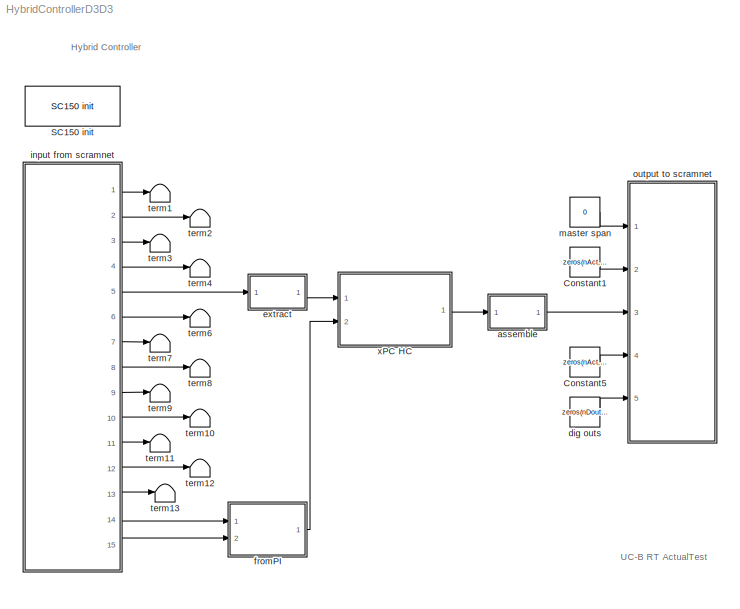
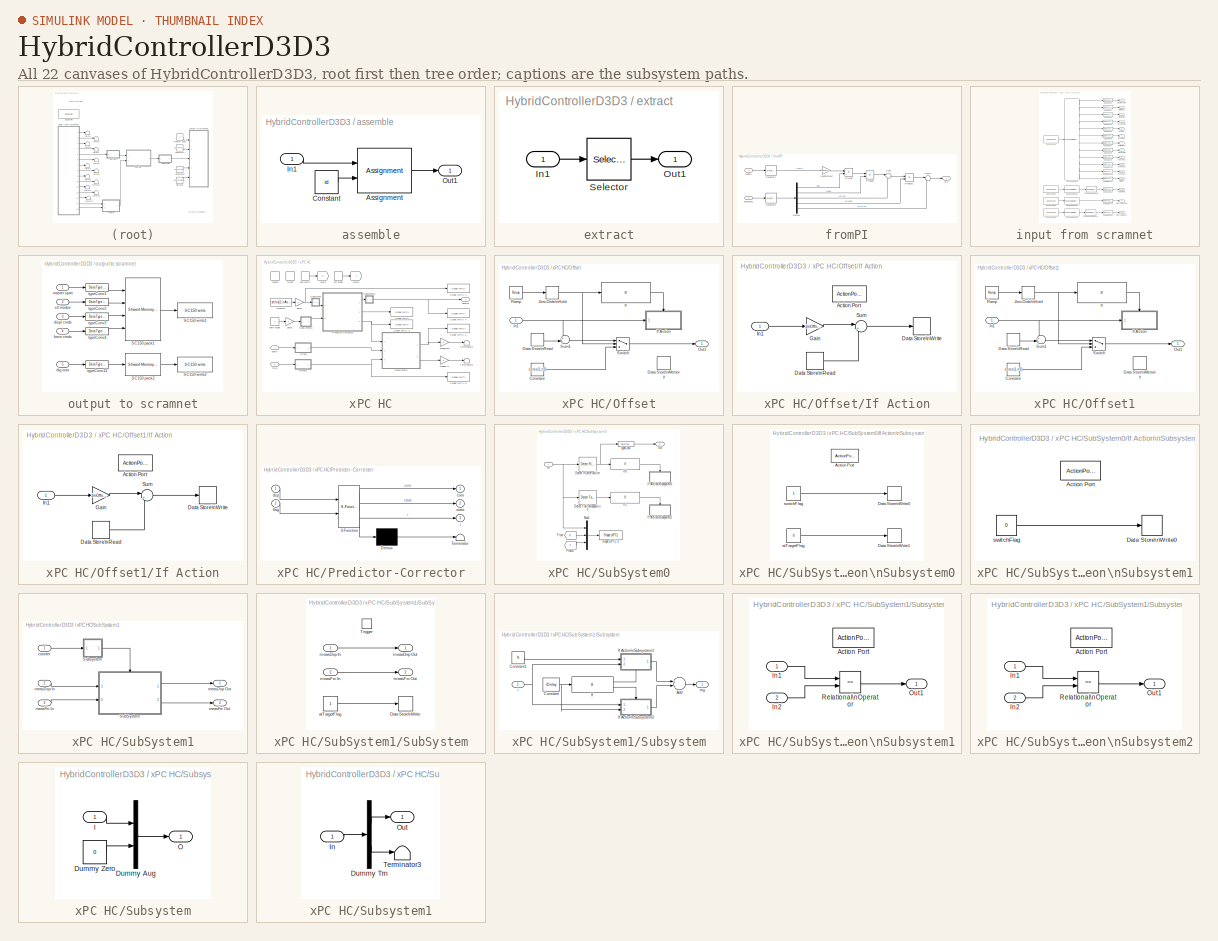
[diagram: thumbnail index - all 22 canvases of the model, root first then tree order]
MODEL HybridControllerD3D3
KIND model
CONFIG PreLoadFcn = initializeSimulation
BLOCK [Constant] Constant1
  OutDataType = sfix(16)
  OutScaling = 2^0
  SID = 1
  Value = zeros(nAct,1)
BLOCK [Constant] Constant5
  OutDataType = sfix(16)
  OutScaling = 2^0
  SID = 2
  Value = zeros(nAct,1)
BLOCK [Reference] SC150 init  REF=xpcsystranlib/Shared\nMemory/SC150 init 
  Ports = []
  SID = 3
  SourceBlock = xpcsystranlib/Shared\nMemory/SC150 init
  SourceType = SC150 Init
  node = node
  pci = -1
BLOCK [SubSystem] assemble
  FunctionWithSeparateData = off
  MaskCallbackString = |
  MaskDescription = To select to which actuator(s) the signals are going to
  MaskDisplay = disp('Assemble')
  MaskEnableString = on,on
  MaskHideContents = off
  MaskIconFrame = on
  MaskIconOpaque = on
  MaskIconRotate = none
  MaskIconUnits = autoscale
  MaskPortRotate = default
  MaskPromptString = Index Vector: id|Vector Size: size
  MaskStyleString = edit,edit
  MaskToolTipString = on,on
  MaskTunableValueString = on,on
  MaskType = to Actuators
  MaskValueString = [1 2 3]|nAct
  MaskVariables = id=@1;size=@2;
  MaskVisibilityString = on,on
  MinAlgLoopOccurrences = off
  Opaque = off
  Ports = [1, 1]
  PropExecContextOutsideSubsystem = off
  RTWSystemCode = Auto
  RequestExecContextInheritance = off
  SID = 4
BLOCK [Assignment] assemble/Assignment
  IndexOptions = Index vector (port)
  Indices = 1
  OutputInitialize = Specify size for each dimension in table
  OutputSizes = size
  Ports = [2, 1]
  SID = 6
BLOCK [Constant] assemble/Constant
  OutDataType = sfix(16)
  OutScaling = 2^0
  SID = 7
  Value = id
BLOCK [Inport] assemble/In1
  IconDisplay = Port number
  OutDataType = sfix(16)
  OutScaling = 2^0
  SID = 5
BLOCK [Outport] assemble/Out1
  IconDisplay = Port number
  OutDataType = sfix(16)
  OutScaling = 2^0
  SID = 8
BLOCK [Constant] dig outs
  OutDataType = sfix(16)
  OutDataTypeMode = uint32
  OutDataTypeStr = uint32
  OutScaling = 2^0
  SID = 9
  Value = zeros(nDout, 1)
BLOCK [SubSystem] extract
  FunctionWithSeparateData = off
  MaskCallbackString = |
  MaskDescription = To select from which actuator(s) the signals are coming from
  MaskDisplay = disp('Extract')
  MaskEnableString = on,on
  MaskHideContents = off
  MaskIconFrame = on
  MaskIconOpaque = on
  MaskIconRotate = none
  MaskIconUnits = autoscale
  MaskPortRotate = default
  MaskPromptString = Index Vector: id|Vector Size: size
  MaskStyleString = edit,edit
  MaskToolTipString = on,on
  MaskTunableValueString = on,on
  MaskType = from Actuators
  MaskValueString = [1 2 3]|nAct
  MaskVariables = id=@1;size=@2;
  MaskVisibilityString = on,on
  MinAlgLoopOccurrences = off
  Opaque = off
  Ports = [1, 1]
  PropExecContextOutsideSubsystem = off
  RTWSystemCode = Auto
  RequestExecContextInheritance = off
  SID = 10
BLOCK [Inport] extract/In1
  IconDisplay = Port number
  OutDataType = sfix(16)
  OutScaling = 2^0
  SID = 11
BLOCK [Outport] extract/Out1
  IconDisplay = Port number
  OutDataType = sfix(16)
  OutScaling = 2^0
  SID = 13
BLOCK [Selector] extract/Selector
  IndexOptions = Index vector (dialog)
  Indices = id
  InputPortWidth = size
  OutputSizes = 1
  Ports = [1, 1]
  SID = 12
BLOCK [SubSystem] fromPI
  FunctionWithSeparateData = off
  MaskHideContents = off
  MinAlgLoopOccurrences = off
  Opaque = off
  Ports = [2, 1]
  PropExecContextOutsideSubsystem = off
  RTWSystemCode = Auto
  RequestExecContextInheritance = off
  SID = 14
BLOCK [Gain] fromPI/Count2mvolt
  Gain = 10000/32768
  OutDataType = sfix(16)
  OutDataTypeMode = Inherit via internal rule
  OutDataTypeStr = Inherit: Inherit via internal rule
  OutScaling = 2^0
  ParamDataTypeStr = Inherit: Inherit via internal rule
  ParameterDataType = sfix(16)
  ParameterDataTypeMode = Inherit via internal rule
  ParameterScaling = 2^0
  SID = 17
  SaturateOnIntegerOverflow = off
BLOCK [Demux] fromPI/Demux
  DisplayOption = bar
  Outputs = repmat(length(chanID),1,5)
  Ports = [1, 5]
  SID = 18
BLOCK [Product] fromPI/Divide
  InputSameDT = off
  Inputs = */
  OutDataType = sfix(16)
  OutDataTypeMode = Inherit via internal rule
  OutDataTypeStr = Inherit: Inherit via internal rule
  OutScaling = 2^-10
  Ports = [2, 1]
  RndMeth = Floor
  SID = 19
  SaturateOnIntegerOverflow = off
BLOCK [Outport] fromPI/EU
  IconDisplay = Port number
  OutDataType = sfix(16)
  OutScaling = 2^0
  SID = 26
BLOCK [Product] fromPI/Product
  InputSameDT = off
  OutDataType = sfix(16)
  OutDataTypeMode = Inherit via internal rule
  OutDataTypeStr = Inherit: Inherit via internal rule
  OutScaling = 2^0
  Ports = [2, 1]
  SID = 20
  SaturateOnIntegerOverflow = off
BLOCK [Product] fromPI/Product1
  InputSameDT = off
  OutDataType = sfix(16)
  OutDataTypeMode = Inherit via internal rule
  OutDataTypeStr = Inherit: Inherit via internal rule
  OutScaling = 2^0
  Ports = [2, 1]
  SID = 21
  SaturateOnIntegerOverflow = off
BLOCK [Selector] fromPI/Selector1
  IndexOptions = Index vector (dialog)
  Indices = countsID
  InputPortWidth = nCard*CVTcompression*2
  OutputSizes = 1
  Ports = [1, 1]
  SID = 22
BLOCK [Selector] fromPI/Selector2
  IndexOptions = Index vector (dialog)
  Indices = calibrationID
  InputPortWidth = nCard*CVTcompression*11
  OutputSizes = 1
  Ports = [1, 1]
  SID = 23
BLOCK [Sum] fromPI/Sum
  IconShape = round
  InputSameDT = off
  Inputs = |++
  OutDataType = sfix(16)
  OutDataTypeMode = Inherit via internal rule
  OutDataTypeStr = Inherit: Inherit via internal rule
  OutScaling = 2^0
  Ports = [2, 1]
  SID = 24
  SaturateOnIntegerOverflow = off
BLOCK [Sum] fromPI/Sum1
  IconShape = round
  InputSameDT = off
  Inputs = |++
  OutDataType = sfix(16)
  OutDataTypeMode = Inherit via internal rule
  OutDataTypeStr = Inherit: Inherit via internal rule
  OutScaling = 2^0
  Ports = [2, 1]
  SID = 25
  SaturateOnIntegerOverflow = off
BLOCK [Inport] fromPI/constants
  IconDisplay = Port number
  OutDataType = sfix(16)
  OutScaling = 2^0
  Port = 2
  SID = 16
BLOCK [Inport] fromPI/counts
  IconDisplay = Port number
  OutDataType = sfix(16)
  OutScaling = 2^0
  SID = 15
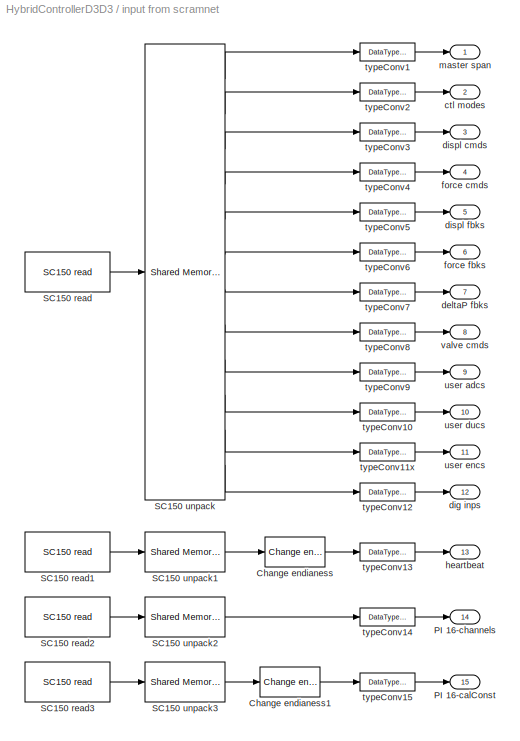
BLOCK [SubSystem] input from scramnet
  FunctionWithSeparateData = off
  MaskHideContents = off
  MinAlgLoopOccurrences = off
  Opaque = off
  Ports = [0, 15]
  PropExecContextOutsideSubsystem = off
  RTWSystemCode = Auto
  RequestExecContextInheritance = off
  SID = 27
BLOCK [Reference] input from scramnet/Change endianess  REF=xpclib/Shared\nMemory/Change endianess
  Ports = [1, 1]
  SID = 28
  SourceBlock = xpclib/Shared\nMemory/Change endianess
  SourceType = xpcreverseendian
  lengthIn = Double Word
  numInp = 1
BLOCK [Reference] input from scramnet/Change endianess1  REF=xpclib/Shared\nMemory/Change endianess
  Ports = [1, 1]
  SID = 29
  SourceBlock = xpclib/Shared\nMemory/Change endianess
  SourceType = xpcreverseendian
  lengthIn = Double Word
  numInp = 1
BLOCK [Outport] input from scramnet/PI 16-calConst
  IconDisplay = Port number
  OutDataType = sfix(16)
  OutScaling = 2^0
  Port = 15
  SID = 67
BLOCK [Outport] input from scramnet/PI 16-channels
  IconDisplay = Port number
  OutDataType = sfix(16)
  OutScaling = 2^0
  Port = 14
  SID = 66
BLOCK [Reference] input from scramnet/SC150 read  REF=xpcsystranlib/Shared\nMemory/SC150 read 
  Ports = [0, 1]
  SID = 30
  SourceBlock = xpcsystranlib/Shared\nMemory/SC150 read
  SourceType = SC150 Read
  errorport = off
  partition = node.Partitions(12:23)
  pci = -1
  ts = samplePeriod
BLOCK [Reference] input from scramnet/SC150 read1  REF=xpcsystranlib/Shared\nMemory/SC150 read 
  Ports = [0, 1]
  SID = 31
  SourceBlock = xpcsystranlib/Shared\nMemory/SC150 read
  SourceType = SC150 Read
  errorport = off
  partition = node.Partitions(25)
  pci = -1
  ts = samplePeriod
BLOCK [Reference] input from scramnet/SC150 read2  REF=xpcsystranlib/Shared\nMemory/SC150 read 
  Ports = [0, 1]
  SID = 32
  SourceBlock = xpcsystranlib/Shared\nMemory/SC150 read
  SourceType = SC150 Read
  errorport = off
  partition = node.Partitions(26)
  pci = -1
  ts = samplePeriod
BLOCK [Reference] input from scramnet/SC150 read3  REF=xpcsystranlib/Shared\nMemory/SC150 read 
  Ports = [0, 1]
  SID = 33
  SourceBlock = xpcsystranlib/Shared\nMemory/SC150 read
  SourceType = SC150 Read
  errorport = off
  partition = node.Partitions(29)
  pci = -1
  ts = samplePeriod
BLOCK [Reference] input from scramnet/SC150 unpack  REF=xpclib/Shared\nMemory/Shared Memory Unpack 
  Ports = [1, 12]
  SID = 34
  SourceBlock = xpclib/Shared\nMemory/Shared Memory Unpack
  SourceType = Shared Memory Partition Unpacking
  partition = node.Partitions(12:23)
BLOCK [Reference] input from scramnet/SC150 unpack1  REF=xpclib/Shared\nMemory/Shared Memory Unpack 
  Ports = [1, 1]
  SID = 35
  SourceBlock = xpclib/Shared\nMemory/Shared Memory Unpack
  SourceType = Shared Memory Partition Unpacking
  partition = node.Partitions(25)
BLOCK [Reference] input from scramnet/SC150 unpack2  REF=xpclib/Shared\nMemory/Shared Memory Unpack 
  Ports = [1, 1]
  SID = 36
  SourceBlock = xpclib/Shared\nMemory/Shared Memory Unpack
  SourceType = Shared Memory Partition Unpacking
  partition = node.Partitions(26)
BLOCK [Reference] input from scramnet/SC150 unpack3  REF=xpclib/Shared\nMemory/Shared Memory Unpack 
  Ports = [1, 1]
  SID = 37
  SourceBlock = xpclib/Shared\nMemory/Shared Memory Unpack
  SourceType = Shared Memory Partition Unpacking
  partition = node.Partitions(29)
BLOCK [Outport] input from scramnet/ctl modes
  IconDisplay = Port number
  OutDataType = sfix(16)
  OutScaling = 2^0
  Port = 2
  SID = 54
BLOCK [Outport] input from scramnet/deltaP fbks
  IconDisplay = Port number
  OutDataType = sfix(16)
  OutScaling = 2^0
  Port = 7
  SID = 59
BLOCK [Outport] input from scramnet/dig inps
  IconDisplay = Port number
  OutDataType = sfix(16)
  OutScaling = 2^0
  Port = 12
  SID = 64
BLOCK [Outport] input from scramnet/displ cmds
  IconDisplay = Port number
  OutDataType = sfix(16)
  OutScaling = 2^0
  Port = 3
  SID = 55
BLOCK [Outport] input from scramnet/displ fbks
  IconDisplay = Port number
  OutDataType = sfix(16)
  OutScaling = 2^0
  Port = 5
  SID = 57
BLOCK [Outport] input from scramnet/force cmds
  IconDisplay = Port number
  OutDataType = sfix(16)
  OutScaling = 2^0
  Port = 4
  SID = 56
BLOCK [Outport] input from scramnet/force fbks
  IconDisplay = Port number
  OutDataType = sfix(16)
  OutScaling = 2^0
  Port = 6
  SID = 58
BLOCK [Outport] input from scramnet/heartbeat
  IconDisplay = Port number
  OutDataType = sfix(16)
  OutScaling = 2^0
  Port = 13
  SID = 65
BLOCK [Outport] input from scramnet/master span
  IconDisplay = Port number
  OutDataType = sfix(16)
  OutScaling = 2^0
  SID = 53
BLOCK [DataTypeConversion] input from scramnet/typeConv1
  OutDataType = sfix(16)
  OutDataTypeMode = double
  OutDataTypeStr = double
  OutScaling = 2^0
  SID = 38
BLOCK [DataTypeConversion] input from scramnet/typeConv10
  OutDataType = sfix(16)
  OutDataTypeMode = double
  OutDataTypeStr = double
  OutScaling = 2^0
  SID = 39
BLOCK [DataTypeConversion] input from scramnet/typeConv11x
  OutDataType = sfix(16)
  OutDataTypeMode = double
  OutDataTypeStr = double
  OutScaling = 2^0
  SID = 40
BLOCK [DataTypeConversion] input from scramnet/typeConv12
  OutDataType = sfix(16)
  OutDataTypeMode = uint32
  OutDataTypeStr = uint32
  OutScaling = 2^0
  SID = 41
BLOCK [DataTypeConversion] input from scramnet/typeConv13
  OutDataType = sfix(16)
  OutDataTypeMode = uint32
  OutDataTypeStr = uint32
  OutScaling = 2^0
  SID = 42
BLOCK [DataTypeConversion] input from scramnet/typeConv14
  OutDataType = sfix(16)
  OutDataTypeMode = double
  OutDataTypeStr = double
  OutScaling = 2^0
  SID = 43
BLOCK [DataTypeConversion] input from scramnet/typeConv15
  OutDataType = sfix(16)
  OutDataTypeMode = double
  OutDataTypeStr = double
  OutScaling = 2^0
  SID = 44
BLOCK [DataTypeConversion] input from scramnet/typeConv2
  OutDataType = sfix(16)
  OutDataTypeMode = uint32
  OutDataTypeStr = uint32
  OutScaling = 2^0
  SID = 45
BLOCK [DataTypeConversion] input from scramnet/typeConv3
  OutDataType = sfix(16)
  OutDataTypeMode = double
  OutDataTypeStr = double
  OutScaling = 2^0
  SID = 46
BLOCK [DataTypeConversion] input from scramnet/typeConv4
  OutDataType = sfix(16)
  OutDataTypeMode = double
  OutDataTypeStr = double
  OutScaling = 2^0
  SID = 47
BLOCK [DataTypeConversion] input from scramnet/typeConv5
  OutDataType = sfix(16)
  OutDataTypeMode = double
  OutDataTypeStr = double
  OutScaling = 2^0
  SID = 48
BLOCK [DataTypeConversion] input from scramnet/typeConv6
  OutDataType = sfix(16)
  OutDataTypeMode = double
  OutDataTypeStr = double
  OutScaling = 2^0
  SID = 49
BLOCK [DataTypeConversion] input from scramnet/typeConv7
  OutDataType = sfix(16)
  OutDataTypeMode = double
  OutDataTypeStr = double
  OutScaling = 2^0
  SID = 50
BLOCK [DataTypeConversion] input from scramnet/typeConv8
  OutDataType = sfix(16)
  OutDataTypeMode = double
  OutDataTypeStr = double
  OutScaling = 2^0
  SID = 51
BLOCK [DataTypeConversion] input from scramnet/typeConv9
  OutDataType = sfix(16)
  OutDataTypeMode = double
  OutDataTypeStr = double
  OutScaling = 2^0
  SID = 52
BLOCK [Outport] input from scramnet/user adcs
  IconDisplay = Port number
  OutDataType = sfix(16)
  OutScaling = 2^0
  Port = 9
  SID = 61
BLOCK [Outport] input from scramnet/user ducs
  IconDisplay = Port number
  OutDataType = sfix(16)
  OutScaling = 2^0
  Port = 10
  SID = 62
BLOCK [Outport] input from scramnet/user encs
  IconDisplay = Port number
  OutDataType = sfix(16)
  OutScaling = 2^0
  Port = 11
  SID = 63
BLOCK [Outport] input from scramnet/valve cmds
  IconDisplay = Port number
  OutDataType = sfix(16)
  OutScaling = 2^0
  Port = 8
  SID = 60
BLOCK [Constant] master span
  OutDataType = sfix(16)
  OutScaling = 2^0
  SID = 68
  Value = 0
BLOCK [SubSystem] output to scramnet
  FunctionWithSeparateData = off
  MaskHideContents = off
  MinAlgLoopOccurrences = off
  Opaque = off
  Ports = [5]
  PropExecContextOutsideSubsystem = off
  RTWSystemCode = Auto
  RequestExecContextInheritance = off
  SID = 69
BLOCK [Reference] output to scramnet/SC150 pack1  REF=xpclib/Shared\nMemory/Shared Memory Pack 
  Ports = [4, 1]
  SID = 75
  SourceBlock = xpclib/Shared\nMemory/Shared Memory Pack
  SourceType = Shared-memory Pack
  partition = node.Partitions(1:4)
BLOCK [Reference] output to scramnet/SC150 pack2  REF=xpclib/Shared\nMemory/Shared Memory Pack 
  Ports = [1, 1]
  SID = 76
  SourceBlock = xpclib/Shared\nMemory/Shared Memory Pack
  SourceType = Shared-memory Pack
  partition = node.Partitions(11)
BLOCK [Reference] output to scramnet/SC150 write1  REF=xpcsystranlib/Shared\nMemory/SC150 write 
  Ports = [1]
  SID = 77
  SourceBlock = xpcsystranlib/Shared\nMemory/SC150 write
  SourceType = SC150 Write
  errorport = off
  partition = node.Partitions(1:4)
  pci = -1
  ts = samplePeriod
BLOCK [Reference] output to scramnet/SC150 write2  REF=xpcsystranlib/Shared\nMemory/SC150 write 
  Ports = [1]
  SID = 78
  SourceBlock = xpcsystranlib/Shared\nMemory/SC150 write
  SourceType = SC150 Write
  errorport = off
  partition = node.Partitions(11)
  pci = -1
  ts = samplePeriod
BLOCK [Inport] output to scramnet/ctl modes
  IconDisplay = Port number
  OutDataType = sfix(16)
  OutScaling = 2^0
  Port = 2
  SID = 71
BLOCK [Inport] output to scramnet/dig outs
  IconDisplay = Port number
  OutDataType = sfix(16)
  OutScaling = 2^0
  Port = 5
  SID = 74
BLOCK [Inport] output to scramnet/displ cmds
  IconDisplay = Port number
  OutDataType = sfix(16)
  OutScaling = 2^0
  Port = 3
  SID = 72
BLOCK [Inport] output to scramnet/force cmds
  IconDisplay = Port number
  OutDataType = sfix(16)
  OutScaling = 2^0
  Port = 4
  SID = 73
BLOCK [Inport] output to scramnet/master span
  IconDisplay = Port number
  OutDataType = sfix(16)
  OutScaling = 2^0
  SID = 70
BLOCK [DataTypeConversion] output to scramnet/typeConv1
  OutDataType = sfix(16)
  OutDataTypeMode = single
  OutDataTypeStr = single
  OutScaling = 2^0
  SID = 79
BLOCK [DataTypeConversion] output to scramnet/typeConv11
  OutDataType = sfix(16)
  OutDataTypeMode = uint32
  OutDataTypeStr = uint32
  OutScaling = 2^0
  SID = 80
BLOCK [DataTypeConversion] output to scramnet/typeConv2
  OutDataType = sfix(16)
  OutDataTypeMode = uint32
  OutDataTypeStr = uint32
  OutScaling = 2^0
  SID = 81
BLOCK [DataTypeConversion] output to scramnet/typeConv3
  OutDataType = sfix(16)
  OutDataTypeMode = single
  OutDataTypeStr = single
  OutScaling = 2^0
  SID = 82
BLOCK [DataTypeConversion] output to scramnet/typeConv4
  OutDataType = sfix(16)
  OutDataTypeMode = single
  OutDataTypeStr = single
  OutScaling = 2^0
  SID = 83
BLOCK [Terminator] term1
  SID = 84
BLOCK [Terminator] term10
  SID = 85
BLOCK [Terminator] term11
  SID = 86
BLOCK [Terminator] term12
  SID = 87
BLOCK [Terminator] term13
  SID = 88
BLOCK [Terminator] term2
  SID = 89
BLOCK [Terminator] term3
  SID = 90
BLOCK [Terminator] term4
  SID = 91
BLOCK [Terminator] term6
  SID = 92
BLOCK [Terminator] term7
  SID = 93
BLOCK [Terminator] term8
  SID = 94
BLOCK [Terminator] term9
  SID = 95
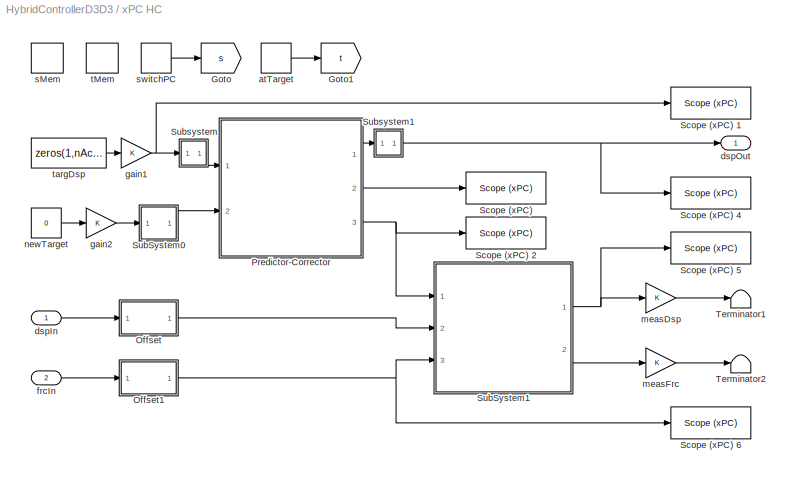
BLOCK [SubSystem] xPC HC
  FunctionWithSeparateData = off
  MaskCallbackString = |||||
  MaskDescription = Hybrid Controller using C0-continuous cubic Lagrange interpolation for prediction and correction
  MaskDisplay = disp('xPC Target\\nHybrid Controller\\n(D3/D3)')
  MaskEnableString = on,on,on,on,on,on
  MaskHideContents = off
  MaskIconFrame = on
  MaskIconOpaque = on
  MaskIconRotate = none
  MaskIconUnits = autoscale
  MaskPortRotate = default
  MaskPromptString = Number of Actuators: nAct|Integration time step: dtInt|Simulation time step: dtSim|Controller time step: dtCon|Maximum number of substeps: N|Number of delay steps: iDelay
  MaskStyleString = edit,edit,edit,edit,edit,edit
  MaskToolTipString = on,on,on,on,on,on
  MaskTunableValueString = off,on,on,on,on,on
  MaskType = Hybrid Controller: D3/D3
  MaskValueString = 3|HybridCtrlParameters.dtInt|HybridCtrlParameters.dtSim|HybridCtrlParameters.dtCon|HybridCtrlParameters.N|HybridCtrlParameters.iDelay
  MaskVariables = nAct=@1;dtInt=@2;dtSim=@3;dtCon=@4;N=@5;iDelay=@6;
  MaskVisibilityString = on,on,on,on,on,on
  MinAlgLoopOccurrences = off
  Opaque = off
  Ports = [2, 1]
  PropExecContextOutsideSubsystem = off
  RTWSystemCode = Auto
  RequestExecContextInheritance = off
  SID = 96
BLOCK [Goto] xPC HC/Goto
  GotoTag = s
  SID = 99
  TagVisibility = global
BLOCK [Goto] xPC HC/Goto1
  GotoTag = t
  SID = 100
  TagVisibility = global
BLOCK [SubSystem] xPC HC/Offset
  FunctionWithSeparateData = off
  MaskCallbackString = ||
  MaskDescription = Offset signal by average of signal over initial number of samples
  MaskDisplay = fprintf('Signal\\nOffset')
  MaskEnableString = on,on,on
  MaskHideContents = off
  MaskIconFrame = on
  MaskIconOpaque = on
  MaskIconRotate = none
  MaskIconUnits = autoscale
  MaskPortRotate = default
  MaskPromptString = Number of Signals: nS|Number of samples to initialize offset: nOffset|Sample time: dt
  MaskStyleString = edit,edit,edit
  MaskToolTipString = on,on,on
  MaskTunableValueString = on,on,on
  MaskType = Signal Offset
  MaskValueString = 3|1024|dtCon
  MaskVariables = nS=@1;nOffset=@2;dt=@3;
  MaskVisibilityString = on,on,on
  MinAlgLoopOccurrences = off
  Opaque = off
  Ports = [1, 1]
  PropExecContextOutsideSubsystem = off
  RTWSystemCode = Auto
  RequestExecContextInheritance = off
  SID = 101
BLOCK [Constant] xPC HC/Offset/Constant
  OutDataType = sfix(16)
  OutScaling = 2^0
  SID = 103
  Value = zeros(1,nS)
BLOCK [DataStoreMemory] xPC HC/Offset/Data Store\nMemory
  DataStoreName = x0
  DataType = double
  InitialValue = zeros(1,nS)
  OutDataType = sfix(16)
  OutDataTypeStr = double
  OutScaling = 2^0
  RTWStateStorageClass = Auto
  SID = 104
  SignalType = real
  VectorParams1D = on
BLOCK [DataStoreRead] xPC HC/Offset/Data Store\nRead
  DataStoreName = x0
  SID = 105
  SampleTime = dt
BLOCK [If] xPC HC/Offset/If
  IfExpression = u1 < nOffset
  Ports = [1, 1]
  SID = 106
  ShowElse = off
BLOCK [SubSystem] xPC HC/Offset/If Action
  FunctionWithSeparateData = off
  MaskHideContents = off
  MinAlgLoopOccurrences = off
  Opaque = off
  Ports = [1, 0, 0, 0, 0, 0, 0, 1]
  PropExecContextOutsideSubsystem = off
  RTWSystemCode = Auto
  RequestExecContextInheritance = off
  SID = 107
  TreatAsAtomicUnit = on
BLOCK [ActionPort] xPC HC/Offset/If Action/Action Port
  PropagateVarSize = During execution
  SID = 109
BLOCK [DataStoreRead] xPC HC/Offset/If Action/Data Store\nRead
  DataStoreName = x0
  SID = 110
  SampleTime = dt
BLOCK [DataStoreWrite] xPC HC/Offset/If Action/Data Store\nWrite
  DataStoreName = x0
  SID = 111
  SampleTime = -1
BLOCK [Gain] xPC HC/Offset/If Action/Gain
  Gain = 1/nOffset
  OutDataType = sfix(16)
  OutScaling = 2^0
  ParameterDataType = sfix(16)
  ParameterScaling = 2^0
  SID = 112
BLOCK [Inport] xPC HC/Offset/If Action/In1
  IconDisplay = Port number
  OutDataType = sfix(16)
  OutScaling = 2^0
  SID = 108
BLOCK [Sum] xPC HC/Offset/If Action/Sum
  IconShape = round
  Inputs = |++
  OutDataType = sfix(16)
  OutScaling = 2^0
  Ports = [2, 1]
  SID = 113
BLOCK [Inport] xPC HC/Offset/In1
  IconDisplay = Port number
  OutDataType = sfix(16)
  OutScaling = 2^0
  SID = 102
BLOCK [Outport] xPC HC/Offset/Out1
  IconDisplay = Port number
  OutDataType = sfix(16)
  OutScaling = 2^0
  SID = 118
BLOCK [Reference] xPC HC/Offset/Ramp  REF=simulink/Sources/Ramp
  FunctionWithSeparateData = off
  Ports = [0, 1]
  RTWMemSecDataConstants = Inherit from model
  RTWMemSecDataInternal = Inherit from model
  RTWMemSecDataParameters = Inherit from model
  RTWMemSecFuncExecute = Inherit from model
  RTWMemSecFuncInitTerm = Inherit from model
  SID = 114
  ShowPortLabels = FromPortIcon
  SourceBlock = simulink/Sources/Ramp
  SourceType = Ramp
  SystemSampleTime = -1
  VectorParams1D = on
  X0 = 0
  slope = 1/dt
  start = 0
BLOCK [Sum] xPC HC/Offset/Sum1
  IconShape = round
  Inputs = +-|
  OutDataType = sfix(16)
  OutScaling = 2^0
  Ports = [2, 1]
  SID = 115
BLOCK [Switch] xPC HC/Offset/Switch
  SID = 116
  Threshold = nOffset
BLOCK [ZeroOrderHold] xPC HC/Offset/Zero-Order\nHold
  SID = 117
  SampleTime = dt
BLOCK [SubSystem] xPC HC/Offset1
  FunctionWithSeparateData = off
  MaskCallbackString = ||
  MaskDescription = Offset signal by average of signal over initial number of samples
  MaskDisplay = fprintf('Signal\\nOffset')
  MaskEnableString = on,on,on
  MaskHideContents = off
  MaskIconFrame = on
  MaskIconOpaque = on
  MaskIconRotate = none
  MaskIconUnits = autoscale
  MaskPortRotate = default
  MaskPromptString = Number of Signals: nS|Number of samples to initialize offset: nOffset|Sample time: dt
  MaskStyleString = edit,edit,edit
  MaskToolTipString = on,on,on
  MaskTunableValueString = on,on,on
  MaskType = Signal Offset
  MaskValueString = 6|1024|dtCon
  MaskVariables = nS=@1;nOffset=@2;dt=@3;
  MaskVisibilityString = on,on,on
  MinAlgLoopOccurrences = off
  Opaque = off
  Ports = [1, 1]
  PropExecContextOutsideSubsystem = off
  RTWSystemCode = Auto
  RequestExecContextInheritance = off
  SID = 119
BLOCK [Constant] xPC HC/Offset1/Constant
  OutDataType = sfix(16)
  OutScaling = 2^0
  SID = 121
  Value = zeros(1,nS)
BLOCK [DataStoreMemory] xPC HC/Offset1/Data Store\nMemory
  DataStoreName = x0
  DataType = double
  InitialValue = zeros(1,nS)
  OutDataType = sfix(16)
  OutDataTypeStr = double
  OutScaling = 2^0
  RTWStateStorageClass = Auto
  SID = 122
  SignalType = real
  VectorParams1D = on
BLOCK [DataStoreRead] xPC HC/Offset1/Data Store\nRead
  DataStoreName = x0
  SID = 123
  SampleTime = dt
BLOCK [If] xPC HC/Offset1/If
  IfExpression = u1 < nOffset
  Ports = [1, 1]
  SID = 124
  ShowElse = off
BLOCK [SubSystem] xPC HC/Offset1/If Action
  FunctionWithSeparateData = off
  MaskHideContents = off
  MinAlgLoopOccurrences = off
  Opaque = off
  Ports = [1, 0, 0, 0, 0, 0, 0, 1]
  PropExecContextOutsideSubsystem = off
  RTWSystemCode = Auto
  RequestExecContextInheritance = off
  SID = 125
  TreatAsAtomicUnit = on
BLOCK [ActionPort] xPC HC/Offset1/If Action/Action Port
  PropagateVarSize = During execution
  SID = 127
BLOCK [DataStoreRead] xPC HC/Offset1/If Action/Data Store\nRead
  DataStoreName = x0
  SID = 128
  SampleTime = dt
BLOCK [DataStoreWrite] xPC HC/Offset1/If Action/Data Store\nWrite
  DataStoreName = x0
  SID = 129
  SampleTime = -1
BLOCK [Gain] xPC HC/Offset1/If Action/Gain
  Gain = 1/nOffset
  OutDataType = sfix(16)
  OutScaling = 2^0
  ParameterDataType = sfix(16)
  ParameterScaling = 2^0
  SID = 130
BLOCK [Inport] xPC HC/Offset1/If Action/In1
  IconDisplay = Port number
  OutDataType = sfix(16)
  OutScaling = 2^0
  SID = 126
BLOCK [Sum] xPC HC/Offset1/If Action/Sum
  IconShape = round
  Inputs = |++
  OutDataType = sfix(16)
  OutScaling = 2^0
  Ports = [2, 1]
  SID = 131
BLOCK [Inport] xPC HC/Offset1/In1
  IconDisplay = Port number
  OutDataType = sfix(16)
  OutScaling = 2^0
  SID = 120
BLOCK [Outport] xPC HC/Offset1/Out1
  IconDisplay = Port number
  OutDataType = sfix(16)
  OutScaling = 2^0
  SID = 136
BLOCK [Reference] xPC HC/Offset1/Ramp  REF=simulink/Sources/Ramp
  FunctionWithSeparateData = off
  Ports = [0, 1]
  RTWMemSecDataConstants = Inherit from model
  RTWMemSecDataInternal = Inherit from model
  RTWMemSecDataParameters = Inherit from model
  RTWMemSecFuncExecute = Inherit from model
  RTWMemSecFuncInitTerm = Inherit from model
  SID = 132
  ShowPortLabels = FromPortIcon
  SourceBlock = simulink/Sources/Ramp
  SourceType = Ramp
  SystemSampleTime = -1
  VectorParams1D = on
  X0 = 0
  slope = 1/dt
  start = 0
BLOCK [Sum] xPC HC/Offset1/Sum1
  IconShape = round
  Inputs = +-|
  OutDataType = sfix(16)
  OutScaling = 2^0
  Ports = [2, 1]
  SID = 133
BLOCK [Switch] xPC HC/Offset1/Switch
  SID = 134
  Threshold = nOffset
BLOCK [ZeroOrderHold] xPC HC/Offset1/Zero-Order\nHold
  SID = 135
  SampleTime = dt
BLOCK [SubSystem] xPC HC/Predictor-Corrector
  FunctionWithSeparateData = off
  MaskDisplay = plot(sf('Private','sfblk','xIcon'),sf('Private','sfblk','yIcon'));text(0.5,0,sf('Private', 'sfblk', 'tIcon'),'HorizontalAl','Center','VerticalAl','Bottom');
  MaskHideContents = off
  MaskIconFrame = off
  MaskIconOpaque = off
  MaskIconRotate = none
  MaskIconUnits = autoscale
  MaskPortRotate = default
  MaskSelfModifiable = on
  MaskType = Stateflow
  MinAlgLoopOccurrences = off
  Opaque = off
  PermitHierarchicalResolution = ExplicitOnly
  Ports = [2, 3]
  PropExecContextOutsideSubsystem = off
  RTWSystemCode = Auto
  RequestExecContextInheritance = off
  SID = 137
  TreatAsAtomicUnit = on
BLOCK [Demux] xPC HC/Predictor-Corrector/ Demux 
  Outputs = 1
  Ports = [1, 1]
  SID = 10
BLOCK [S-Function] xPC HC/Predictor-Corrector/ SFunction 
  EnableBusSupport = off
  FunctionName = sf_sfun
  Parameters = N,nAct
  PortCounts = [2 4]
  Ports = [2, 4]
  SID = 9
  Tag = Stateflow S-Function HybridControllerD3D3 1
BLOCK [Terminator] xPC HC/Predictor-Corrector/ Terminator 
  SID = 12
BLOCK [Outport] xPC HC/Predictor-Corrector/com
  IconDisplay = Port number
  OutDataType = sfix(16)
  OutScaling = 2^0
  SID = 6
BLOCK [Inport] xPC HC/Predictor-Corrector/dsp
  IconDisplay = Port number
  OutDataType = sfix(16)
  OutScaling = 2^0
  SID = 1
BLOCK [Inport] xPC HC/Predictor-Corrector/flag
  IconDisplay = Port number
  OutDataType = sfix(16)
  OutScaling = 2^0
  Port = 2
  SID = 2
BLOCK [Outport] xPC HC/Predictor-Corrector/i
  IconDisplay = Port number
  OutDataType = sfix(16)
  OutScaling = 2^0
  Port = 3
  SID = 8
BLOCK [Outport] xPC HC/Predictor-Corrector/state
  IconDisplay = Port number
  OutDataType = sfix(16)
  OutScaling = 2^0
  Port = 2
  SID = 7
BLOCK [Reference] xPC HC/Scope (xPC)   REF=xpclib/Misc./Scope (xPC) 
  FunctionWithSeparateData = off
  Ports = [1]
  RTWMemSecDataConstants = Inherit from model
  RTWMemSecDataInternal = Inherit from model
  RTWMemSecDataParameters = Inherit from model
  RTWMemSecFuncExecute = Inherit from model
  RTWMemSecFuncInitTerm = Inherit from model
  SID = 138
  ShowPortLabels = FromPortIcon
  SourceBlock = xpclib/Misc./Scope (xPC)
  SourceType = xpcscopeblock
  SystemSampleTime = -1
  autorestart = on
  autostart = on
  dynamicfilemode = off
  filename = state.dat
  formatstr = '%15.6f'
  grid = on
  interleave = 1
  maxwritefilesize = 512*1024^2
  mode = Lazy
  noprepostsamples = 0
  nosamples = 4096
  scopeno = 4
  scopetype = File
  triggerlevel = 0.0
  triggermode = FreeRun
  triggersample = 0
  triggerscope = 1
  triggersignal = 1
  triggerslope = Either
  viewmode = Graphical redraw
  writesize = 512
  ylimits = [0,3]
BLOCK [Reference] xPC HC/Scope (xPC) 1  REF=xpclib/Misc./Scope (xPC) 
  FunctionWithSeparateData = off
  Ports = [1]
  RTWMemSecDataConstants = Inherit from model
  RTWMemSecDataInternal = Inherit from model
  RTWMemSecDataParameters = Inherit from model
  RTWMemSecFuncExecute = Inherit from model
  RTWMemSecFuncInitTerm = Inherit from model
  SID = 139
  ShowPortLabels = FromPortIcon
  SourceBlock = xpclib/Misc./Scope (xPC)
  SourceType = xpcscopeblock
  SystemSampleTime = -1
  autorestart = on
  autostart = on
  dynamicfilemode = off
  filename = targDsp.dat
  formatstr = '%15.6f'
  grid = on
  interleave = 1
  maxwritefilesize = 512*1024^2
  mode = Lazy
  noprepostsamples = 0
  nosamples = 4096
  scopeno = 1
  scopetype = File
  triggerlevel = 0.0
  triggermode = FreeRun
  triggersample = 0
  triggerscope = 1
  triggersignal = 1
  triggerslope = Either
  viewmode = Numerical
  writesize = 512
  ylimits = [-4,4]
BLOCK [Reference] xPC HC/Scope (xPC) 2  REF=xpclib/Misc./Scope (xPC) 
  FunctionWithSeparateData = off
  Ports = [1]
  RTWMemSecDataConstants = Inherit from model
  RTWMemSecDataInternal = Inherit from model
  RTWMemSecDataParameters = Inherit from model
  RTWMemSecFuncExecute = Inherit from model
  RTWMemSecFuncInitTerm = Inherit from model
  SID = 140
  ShowPortLabels = FromPortIcon
  SourceBlock = xpclib/Misc./Scope (xPC)
  SourceType = xpcscopeblock
  SystemSampleTime = -1
  autorestart = on
  autostart = on
  dynamicfilemode = off
  filename = count.dat
  formatstr = '%15.6f'
  grid = on
  interleave = 1
  maxwritefilesize = 512*1024^2
  mode = Lazy
  noprepostsamples = 0
  nosamples = 4096
  scopeno = 5
  scopetype = File
  triggerlevel = 0.0
  triggermode = FreeRun
  triggersample = 0
  triggerscope = 1
  triggersignal = 1
  triggerslope = Either
  viewmode = Numerical
  writesize = 512
  ylimits = [0,3]
BLOCK [Reference] xPC HC/Scope (xPC) 4  REF=xpclib/Misc./Scope (xPC) 
  FunctionWithSeparateData = off
  Ports = [1]
  RTWMemSecDataConstants = Inherit from model
  RTWMemSecDataInternal = Inherit from model
  RTWMemSecDataParameters = Inherit from model
  RTWMemSecFuncExecute = Inherit from model
  RTWMemSecFuncInitTerm = Inherit from model
  SID = 141
  ShowPortLabels = FromPortIcon
  SourceBlock = xpclib/Misc./Scope (xPC)
  SourceType = xpcscopeblock
  SystemSampleTime = -1
  autorestart = on
  autostart = on
  dynamicfilemode = off
  filename = commDsp.dat
  formatstr = '%15.6f'
  grid = on
  interleave = 1
  maxwritefilesize = 512*1024^2
  mode = Lazy
  noprepostsamples = 0
  nosamples = 4096
  scopeno = 2
  scopetype = File
  triggerlevel = 0.0
  triggermode = FreeRun
  triggersample = 0
  triggerscope = 1
  triggersignal = 1
  triggerslope = Either
  viewmode = Numerical
  writesize = 512
  ylimits = [-4,4]
BLOCK [Reference] xPC HC/Scope (xPC) 5  REF=xpclib/Misc./Scope (xPC) 
  FunctionWithSeparateData = off
  Ports = [1]
  RTWMemSecDataConstants = Inherit from model
  RTWMemSecDataInternal = Inherit from model
  RTWMemSecDataParameters = Inherit from model
  RTWMemSecFuncExecute = Inherit from model
  RTWMemSecFuncInitTerm = Inherit from model
  SID = 142
  ShowPortLabels = FromPortIcon
  SourceBlock = xpclib/Misc./Scope (xPC)
  SourceType = xpcscopeblock
  SystemSampleTime = -1
  autorestart = on
  autostart = on
  dynamicfilemode = off
  filename = measDsp.dat
  formatstr = '%15.6f'
  grid = on
  interleave = 1
  maxwritefilesize = 512*1024^2
  mode = Lazy
  noprepostsamples = 0
  nosamples = 4096
  scopeno = 3
  scopetype = File
  triggerlevel = 0.0
  triggermode = FreeRun
  triggersample = 0
  triggerscope = 1
  triggersignal = 1
  triggerslope = Either
  viewmode = Numerical
  writesize = 512
  ylimits = [-4,4]
BLOCK [Reference] xPC HC/Scope (xPC) 6  REF=xpclib/Misc./Scope (xPC) 
  FunctionWithSeparateData = off
  Ports = [1]
  RTWMemSecDataConstants = Inherit from model
  RTWMemSecDataInternal = Inherit from model
  RTWMemSecDataParameters = Inherit from model
  RTWMemSecFuncExecute = Inherit from model
  RTWMemSecFuncInitTerm = Inherit from model
  SID = 143
  ShowPortLabels = FromPortIcon
  SourceBlock = xpclib/Misc./Scope (xPC)
  SourceType = xpcscopeblock
  SystemSampleTime = -1
  autorestart = on
  autostart = on
  dynamicfilemode = off
  filename = measFrc.dat
  formatstr = '%15.6f'
  grid = on
  interleave = 1
  maxwritefilesize = 512*1024^2
  mode = Lazy
  noprepostsamples = 0
  nosamples = 4096
  scopeno = 6
  scopetype = File
  triggerlevel = 0.0
  triggermode = FreeRun
  triggersample = 0
  triggerscope = 1
  triggersignal = 1
  triggerslope = Either
  viewmode = Numerical
  writesize = 512
  ylimits = [0,3]
BLOCK [SubSystem] xPC HC/SubSystem0
  FunctionWithSeparateData = off
  MaskHideContents = off
  MinAlgLoopOccurrences = off
  Opaque = off
  Ports = [1, 1]
  PropExecContextOutsideSubsystem = off
  RTWSystemCode = Auto
  RequestExecContextInheritance = off
  SID = 144
BLOCK [Reference] xPC HC/SubSystem0/Detect Fall\nNonpositive  REF=simulink/Logic and Bit\nOperations/Detect Fall\nNonpositive
  FunctionWithSeparateData = off
  Ports = [1, 1]
  RTWMemSecDataConstants = Inherit from model
  RTWMemSecDataInternal = Inherit from model
  RTWMemSecDataParameters = Inherit from model
  RTWMemSecFuncExecute = Inherit from model
  RTWMemSecFuncInitTerm = Inherit from model
  SID = 146
  ShowPortLabels = FromPortIcon
  SourceBlock = simulink/Logic and Bit\nOperations/Detect Fall\nNonpositive
  SourceType = Detect Fall Nonpositive
  SystemSampleTime = -1
  vinit = 0
BLOCK [Reference] xPC HC/SubSystem0/Detect Rise\nPositive  REF=simulink/Logic and Bit\nOperations/Detect Rise\nPositive
  FunctionWithSeparateData = off
  Ports = [1, 1]
  RTWMemSecDataConstants = Inherit from model
  RTWMemSecDataInternal = Inherit from model
  RTWMemSecDataParameters = Inherit from model
  RTWMemSecFuncExecute = Inherit from model
  RTWMemSecFuncInitTerm = Inherit from model
  SID = 147
  ShowPortLabels = FromPortIcon
  SourceBlock = simulink/Logic and Bit\nOperations/Detect Rise\nPositive
  SourceType = Detect Rise Positive
  SystemSampleTime = -1
  vinit = 0
BLOCK [From] xPC HC/SubSystem0/From
  GotoTag = s
  IconDisplay = Signal name
  SID = 148
  TagVisibility = global
BLOCK [From] xPC HC/SubSystem0/From1
  GotoTag = t
  IconDisplay = Signal name
  SID = 149
  TagVisibility = global
BLOCK [SubSystem] xPC HC/SubSystem0/If Action\nSubsystem0
  FunctionWithSeparateData = off
  MaskHideContents = off
  MinAlgLoopOccurrences = off
  Opaque = off
  Ports = [0, 0, 0, 0, 0, 0, 0, 1]
  PropExecContextOutsideSubsystem = off
  RTWSystemCode = Auto
  RequestExecContextInheritance = off
  SID = 150
  TreatAsAtomicUnit = on
BLOCK [ActionPort] xPC HC/SubSystem0/If Action\nSubsystem0/Action Port
  PropagateVarSize = During execution
  SID = 151
BLOCK [DataStoreWrite] xPC HC/SubSystem0/If Action\nSubsystem0/Data Store\nWrite0
  DataStoreName = sFlag
  SID = 152
  SampleTime = -1
BLOCK [DataStoreWrite] xPC HC/SubSystem0/If Action\nSubsystem0/Data Store\nWrite1
  DataStoreName = tFlag
  SID = 153
  SampleTime = -1
BLOCK [Constant] xPC HC/SubSystem0/If Action\nSubsystem0/atTargetFlag
  OutDataType = sfix(16)
  OutScaling = 2^0
  SID = 154
  SampleTime = dtCon
  Value = 0
BLOCK [Constant] xPC HC/SubSystem0/If Action\nSubsystem0/switchFlag
  OutDataType = sfix(16)
  OutScaling = 2^0
  SID = 155
  SampleTime = dtCon
BLOCK [SubSystem] xPC HC/SubSystem0/If Action\nSubsystem1
  FunctionWithSeparateData = off
  MaskHideContents = off
  MinAlgLoopOccurrences = off
  Opaque = off
  Ports = [0, 0, 0, 0, 0, 0, 0, 1]
  PropExecContextOutsideSubsystem = off
  RTWSystemCode = Auto
  RequestExecContextInheritance = off
  SID = 156
  TreatAsAtomicUnit = on
BLOCK [ActionPort] xPC HC/SubSystem0/If Action\nSubsystem1/Action Port
  PropagateVarSize = During execution
  SID = 157
BLOCK [DataStoreWrite] xPC HC/SubSystem0/If Action\nSubsystem1/Data Store\nWrite0
  DataStoreName = sFlag
  SID = 158
  SampleTime = -1
BLOCK [Constant] xPC HC/SubSystem0/If Action\nSubsystem1/switchFlag
  OutDataType = sfix(16)
  OutScaling = 2^0
  SID = 159
  SampleTime = dtCon
  Value = 0
BLOCK [If] xPC HC/SubSystem0/If0
  IfExpression = u1 == 1
  Ports = [1, 1]
  SID = 160
  ShowElse = off
BLOCK [If] xPC HC/SubSystem0/If1
  IfExpression = u1 == 1
  Ports = [1, 1]
  SID = 161
  ShowElse = off
BLOCK [Inport] xPC HC/SubSystem0/In
  IconDisplay = Port number
  OutDataType = sfix(16)
  OutScaling = 2^0
  SID = 145
BLOCK [Mux] xPC HC/SubSystem0/Mux1
  DisplayOption = bar
  Inputs = 3
  Ports = [3, 1]
  SID = 162
BLOCK [Outport] xPC HC/SubSystem0/Out
  IconDisplay = Port number
  OutDataType = sfix(16)
  OutScaling = 2^0
  SID = 165
BLOCK [Reference] xPC HC/SubSystem0/Scope (xPC) 3  REF=xpclib/Misc./Scope (xPC) 
  FunctionWithSeparateData = off
  Ports = [1]
  RTWMemSecDataConstants = Inherit from model
  RTWMemSecDataInternal = Inherit from model
  RTWMemSecDataParameters = Inherit from model
  RTWMemSecFuncExecute = Inherit from model
  RTWMemSecFuncInitTerm = Inherit from model
  SID = 163
  ShowPortLabels = FromPortIcon
  SourceBlock = xpclib/Misc./Scope (xPC)
  SourceType = xpcscopeblock
  SystemSampleTime = -1
  autorestart = on
  autostart = on
  dynamicfilemode = off
  filename = flag.dat
  formatstr = '%15.6f'
  grid = on
  interleave = 1
  maxwritefilesize = 512*1024^2
  mode = Lazy
  noprepostsamples = 0
  nosamples = 4096
  scopeno = 7
  scopetype = File
  triggerlevel = 0.0
  triggermode = FreeRun
  triggersample = 0
  triggerscope = 1
  triggersignal = 1
  triggerslope = Either
  viewmode = Numerical
  writesize = 512
  ylimits = [0,3]
BLOCK [DataTypeConversion] xPC HC/SubSystem0/typeConv
  OutDataType = sfix(16)
  OutDataTypeMode = double
  OutDataTypeStr = double
  OutScaling = 2^0
  SID = 164
BLOCK [SubSystem] xPC HC/SubSystem1
  FunctionWithSeparateData = off
  MaskHideContents = off
  MinAlgLoopOccurrences = off
  Opaque = off
  Ports = [3, 2]
  PropExecContextOutsideSubsystem = off
  RTWSystemCode = Auto
  RequestExecContextInheritance = off
  SID = 166
BLOCK [SubSystem] xPC HC/SubSystem1/SubSystem
  FunctionWithSeparateData = off
  MaskHideContents = off
  MinAlgLoopOccurrences = off
  Opaque = off
  Ports = [2, 2, 0, 1]
  PropExecContextOutsideSubsystem = off
  RTWSystemCode = Auto
  RequestExecContextInheritance = off
  SID = 171
  TreatAsAtomicUnit = on
BLOCK [DataStoreWrite] xPC HC/SubSystem1/SubSystem/Data Store\nWrite
  DataStoreName = tFlag
  SID = 175
  SampleTime = -1
BLOCK [TriggerPort] xPC HC/SubSystem1/SubSystem/Trigger
  Ports = []
  SID = 174
  StatesWhenEnabling = held
BLOCK [Constant] xPC HC/SubSystem1/SubSystem/atTargetFlag
  OutDataType = sfix(16)
  OutScaling = 2^0
  SID = 176
  SampleTime = -1
BLOCK [Inport] xPC HC/SubSystem1/SubSystem/measDsp In
  IconDisplay = Port number
  OutDataType = sfix(16)
  OutScaling = 2^0
  SID = 172
BLOCK [Outport] xPC HC/SubSystem1/SubSystem/measDsp Out
  IconDisplay = Port number
  InitialOutput = [0]
  OutDataType = sfix(16)
  OutScaling = 2^0
  SID = 177
BLOCK [Inport] xPC HC/SubSystem1/SubSystem/measFrc In
  IconDisplay = Port number
  OutDataType = sfix(16)
  OutScaling = 2^0
  Port = 2
  SID = 173
BLOCK [Outport] xPC HC/SubSystem1/SubSystem/measFrc Out
  IconDisplay = Port number
  InitialOutput = [0]
  OutDataType = sfix(16)
  OutScaling = 2^0
  Port = 2
  SID = 178
BLOCK [SubSystem] xPC HC/SubSystem1/Subsystem
  FunctionWithSeparateData = off
  MaskHideContents = off
  MinAlgLoopOccurrences = off
  Opaque = off
  Ports = [1, 1]
  PropExecContextOutsideSubsystem = off
  RTWSystemCode = Auto
  RequestExecContextInheritance = off
  SID = 194
BLOCK [Sum] xPC HC/SubSystem1/Subsystem/Add
  InputSameDT = off
  OutDataType = fixdt(1, 16)
  OutDataTypeMode = Inherit via internal rule
  OutDataTypeStr = Inherit: Inherit via internal rule
  OutScaling = 2^-10
  Ports = [2, 1]
  SID = 196
  SaturateOnIntegerOverflow = off
BLOCK [Constant] xPC HC/SubSystem1/Subsystem/Constant
  OutDataType = fixdt(1, 16)
  OutScaling = 2^0
  SID = 197
  Value = iDelay
BLOCK [Constant] xPC HC/SubSystem1/Subsystem/Constant1
  OutDataType = fixdt(1, 16)
  OutScaling = 2^0
  SID = 198
  Value = N
BLOCK [If] xPC HC/SubSystem1/Subsystem/If
  IfExpression = u1 == 0
  Ports = [1, 2]
  SID = 199
BLOCK [SubSystem] xPC HC/SubSystem1/Subsystem/If Action\nSubsystem1
  FunctionWithSeparateData = off
  MaskHideContents = off
  MinAlgLoopOccurrences = off
  Opaque = off
  Ports = [2, 1, 0, 0, 0, 0, 0, 1]
  PropExecContextOutsideSubsystem = off
  RTWSystemCode = Auto
  RequestExecContextInheritance = off
  SID = 200
  TreatAsAtomicUnit = on
BLOCK [ActionPort] xPC HC/SubSystem1/Subsystem/If Action\nSubsystem1/Action Port
  SID = 203
BLOCK [Inport] xPC HC/SubSystem1/Subsystem/If Action\nSubsystem1/In1
  IconDisplay = Port number
  OutDataType = fixdt(1, 16)
  OutScaling = 2^0
  SID = 201
BLOCK [Inport] xPC HC/SubSystem1/Subsystem/If Action\nSubsystem1/In2
  IconDisplay = Port number
  OutDataType = fixdt(1, 16)
  OutScaling = 2^0
  Port = 2
  SID = 202
BLOCK [Outport] xPC HC/SubSystem1/Subsystem/If Action\nSubsystem1/Out1
  IconDisplay = Port number
  OutDataType = fixdt(1, 16)
  OutScaling = 2^0
  SID = 205
BLOCK [RelationalOperator] xPC HC/SubSystem1/Subsystem/If Action\nSubsystem1/Relational\nOperator
  InputSameDT = off
  LogicDataType = fixdt(0, 8)
  LogicOutDataTypeMode = boolean
  Operator = ==
  OutDataTypeStr = boolean
  Ports = [2, 1]
  SID = 204
BLOCK [SubSystem] xPC HC/SubSystem1/Subsystem/If Action\nSubsystem2
  FunctionWithSeparateData = off
  MaskHideContents = off
  MinAlgLoopOccurrences = off
  Opaque = off
  Ports = [2, 1, 0, 0, 0, 0, 0, 1]
  PropExecContextOutsideSubsystem = off
  RTWSystemCode = Auto
  RequestExecContextInheritance = off
  SID = 206
  TreatAsAtomicUnit = on
BLOCK [ActionPort] xPC HC/SubSystem1/Subsystem/If Action\nSubsystem2/Action Port
  SID = 209
BLOCK [Inport] xPC HC/SubSystem1/Subsystem/If Action\nSubsystem2/In1
  IconDisplay = Port number
  OutDataType = fixdt(1, 16)
  OutScaling = 2^0
  SID = 207
BLOCK [Inport] xPC HC/SubSystem1/Subsystem/If Action\nSubsystem2/In2
  IconDisplay = Port number
  OutDataType = fixdt(1, 16)
  OutScaling = 2^0
  Port = 2
  SID = 208
BLOCK [Outport] xPC HC/SubSystem1/Subsystem/If Action\nSubsystem2/Out1
  IconDisplay = Port number
  OutDataType = fixdt(1, 16)
  OutScaling = 2^0
  SID = 211
BLOCK [RelationalOperator] xPC HC/SubSystem1/Subsystem/If Action\nSubsystem2/Relational\nOperator
  InputSameDT = off
  LogicDataType = fixdt(0, 8)
  LogicOutDataTypeMode = boolean
  Operator = ==
  OutDataTypeStr = boolean
  Ports = [2, 1]
  SID = 210
BLOCK [Inport] xPC HC/SubSystem1/Subsystem/i
  IconDisplay = Port number
  SID = 195
BLOCK [Outport] xPC HC/SubSystem1/Subsystem/trig
  IconDisplay = Port number
  SID = 212
BLOCK [Inport] xPC HC/SubSystem1/counter
  IconDisplay = Port number
  OutDataType = sfix(16)
  OutScaling = 2^0
  SID = 167
BLOCK [Inport] xPC HC/SubSystem1/measDsp In
  IconDisplay = Port number
  OutDataType = sfix(16)
  OutScaling = 2^0
  Port = 2
  SID = 168
BLOCK [Outport] xPC HC/SubSystem1/measDsp Out
  IconDisplay = Port number
  OutDataType = sfix(16)
  OutScaling = 2^0
  SID = 179
BLOCK [Inport] xPC HC/SubSystem1/measFrc In
  IconDisplay = Port number
  OutDataType = sfix(16)
  OutScaling = 2^0
  Port = 3
  SID = 169
BLOCK [Outport] xPC HC/SubSystem1/measFrc Out
  IconDisplay = Port number
  OutDataType = sfix(16)
  OutScaling = 2^0
  Port = 2
  SID = 180
BLOCK [SubSystem] xPC HC/Subsystem
  FunctionWithSeparateData = off
  MaskDisplay = disp('I/O')
  MaskHideContents = off
  MaskIconFrame = on
  MaskIconOpaque = on
  MaskIconRotate = none
  MaskIconUnits = autoscale
  MaskPortRotate = default
  MinAlgLoopOccurrences = off
  Opaque = off
  Ports = [1, 1]
  PropExecContextOutsideSubsystem = off
  RTWSystemCode = Auto
  RequestExecContextInheritance = off
  SID = 238
BLOCK [Mux] xPC HC/Subsystem/Dummy Aug
  DisplayOption = bar
  Inputs = [nAct 1]
  Ports = [2, 1]
  SID = 240
BLOCK [Constant] xPC HC/Subsystem/Dummy Zero
  OutDataType = sfix(16)
  OutDataTypeMode = double
  OutDataTypeStr = double
  OutScaling = 2^0
  SID = 241
  SampleTime = dtCon
  Value = 0
BLOCK [Inport] xPC HC/Subsystem/I
  IconDisplay = Port number
  PortDimensions = nAct
  SID = 239
BLOCK [Outport] xPC HC/Subsystem/O
  IconDisplay = Port number
  PortDimensions = nAct+1
  SID = 242
BLOCK [SubSystem] xPC HC/Subsystem1
  FunctionWithSeparateData = off
  MaskDisplay = disp('I/O')
  MaskHideContents = off
  MaskIconFrame = on
  MaskIconOpaque = on
  MaskIconRotate = none
  MaskIconUnits = autoscale
  MaskPortRotate = default
  MinAlgLoopOccurrences = off
  Opaque = off
  Ports = [1, 1]
  PropExecContextOutsideSubsystem = off
  RTWSystemCode = Auto
  RequestExecContextInheritance = off
  SID = 243
BLOCK [Demux] xPC HC/Subsystem1/Dummy Trn
  DisplayOption = bar
  Outputs = [nAct 1]
  Ports = [1, 2]
  SID = 245
BLOCK [Inport] xPC HC/Subsystem1/In
  IconDisplay = Port number
  PortDimensions = nAct+1
  SID = 244
BLOCK [Outport] xPC HC/Subsystem1/Out
  IconDisplay = Port number
  PortDimensions = nAct
  SID = 247
BLOCK [Terminator] xPC HC/Subsystem1/Terminator3
  SID = 246
BLOCK [Terminator] xPC HC/Terminator1
  SID = 181
BLOCK [Terminator] xPC HC/Terminator2
  SID = 182
BLOCK [DataStoreRead] xPC HC/atTarget
  DataStoreName = tFlag
  SID = 183
  SampleTime = dtCon
BLOCK [Inport] xPC HC/dspIn
  IconDisplay = Port number
  OutDataType = sfix(16)
  OutScaling = 2^0
  SID = 97
BLOCK [Outport] xPC HC/dspOut
  IconDisplay = Port number
  OutDataType = sfix(16)
  OutScaling = 2^0
  SID = 193
BLOCK [Inport] xPC HC/frcIn
  IconDisplay = Port number
  OutDataType = sfix(16)
  OutScaling = 2^0
  Port = 2
  SID = 98
BLOCK [Gain] xPC HC/gain1
  OutDataType = sfix(16)
  OutDataTypeMode = Inherit via internal rule
  OutDataTypeStr = Inherit: Inherit via internal rule
  OutScaling = 2^0
  ParamDataTypeStr = Inherit: Inherit via internal rule
  ParameterDataType = sfix(16)
  ParameterDataTypeMode = Inherit via internal rule
  ParameterScaling = 2^0
  SID = 184
  SaturateOnIntegerOverflow = off
BLOCK [Gain] xPC HC/gain2
  OutDataType = sfix(16)
  OutDataTypeMode = Inherit via internal rule
  OutDataTypeStr = Inherit: Inherit via internal rule
  OutScaling = 2^0
  ParamDataTypeStr = Inherit: Inherit via internal rule
  ParameterDataType = sfix(16)
  ParameterDataTypeMode = Inherit via internal rule
  ParameterScaling = 2^0
  SID = 185
  SaturateOnIntegerOverflow = off
BLOCK [Gain] xPC HC/measDsp
  OutDataType = sfix(16)
  OutDataTypeMode = Inherit via internal rule
  OutDataTypeStr = Inherit: Inherit via internal rule
  OutScaling = 2^0
  ParamDataTypeStr = Inherit: Inherit via internal rule
  ParameterDataType = sfix(16)
  ParameterDataTypeMode = Inherit via internal rule
  ParameterScaling = 2^0
  SID = 186
  SaturateOnIntegerOverflow = off
BLOCK [Gain] xPC HC/measFrc
  OutDataType = sfix(16)
  OutDataTypeMode = Inherit via internal rule
  OutDataTypeStr = Inherit: Inherit via internal rule
  OutScaling = 2^0
  ParamDataTypeStr = Inherit: Inherit via internal rule
  ParameterDataType = sfix(16)
  ParameterDataTypeMode = Inherit via internal rule
  ParameterScaling = 2^0
  SID = 187
  SaturateOnIntegerOverflow = off
BLOCK [Constant] xPC HC/newTarget
  OutDataType = sfix(16)
  OutScaling = 2^0
  SID = 188
  SampleTime = dtCon
  Value = 0
BLOCK [DataStoreMemory] xPC HC/sMem
  DataStoreName = sFlag
  DataType = double
  OutDataType = sfix(16)
  OutDataTypeStr = double
  OutScaling = 2^0
  RTWStateStorageClass = Auto
  SID = 189
  SignalType = real
  VectorParams1D = on
BLOCK [DataStoreRead] xPC HC/switchPC
  DataStoreName = sFlag
  SID = 190
  SampleTime = dtCon
BLOCK [DataStoreMemory] xPC HC/tMem
  DataStoreName = tFlag
  DataType = double
  OutDataType = sfix(16)
  OutDataTypeStr = double
  OutScaling = 2^0
  RTWStateStorageClass = Auto
  SID = 191
  SignalType = real
  VectorParams1D = on
BLOCK [Constant] xPC HC/targDsp
  OutDataType = sfix(16)
  OutScaling = 2^0
  SID = 192
  SampleTime = dtCon
  Value = zeros(1,nAct)
ANNOTATION (root): Hybrid Controller
ANNOTATION (root): UC-B RT ActualTest
LINE Constant1:1 -> output to scramnet:2
LINE Constant5:1 -> output to scramnet:4
LINE assemble/Assignment:1 -> assemble/Out1:1
LINE assemble/Constant:1 -> assemble/Assignment:2
LINE assemble/In1:1 -> assemble/Assignment:1
LINE assemble:1 -> output to scramnet:3
LINE dig outs:1 -> output to scramnet:5
LINE extract/In1:1 -> extract/Selector:1
LINE extract/Selector:1 -> extract/Out1:1
LINE extract:1 -> xPC HC:1
LINE fromPI/Count2mvolt:1 -> fromPI/Divide:1
LINE fromPI/Demux:1 -> fromPI/Divide:2
LINE fromPI/Demux:2 -> fromPI/Product:2
LINE fromPI/Demux:3 -> fromPI/Sum:2
LINE fromPI/Demux:4 -> fromPI/Product1:2
LINE fromPI/Demux:5 -> fromPI/Sum1:2
LINE fromPI/Divide:1 -> fromPI/Product:1
LINE fromPI/Product1:1 -> fromPI/Sum1:1
LINE fromPI/Product:1 -> fromPI/Sum:1
LINE fromPI/Selector1:1 -> fromPI/Count2mvolt:1
LINE fromPI/Selector2:1 -> fromPI/Demux:1
LINE fromPI/Sum1:1 -> fromPI/EU:1
LINE fromPI/Sum:1 -> fromPI/Product1:1
LINE fromPI/constants:1 -> fromPI/Selector2:1
LINE fromPI/counts:1 -> fromPI/Selector1:1
LINE fromPI:1 -> xPC HC:2
LINE input from scramnet/Change endianess1:1 -> input from scramnet/typeConv15:1
LINE input from scramnet/Change endianess:1 -> input from scramnet/typeConv13:1
LINE input from scramnet/SC150 read1:1 -> input from scramnet/SC150 unpack1:1
LINE input from scramnet/SC150 read2:1 -> input from scramnet/SC150 unpack2:1
LINE input from scramnet/SC150 read3:1 -> input from scramnet/SC150 unpack3:1
LINE input from scramnet/SC150 read:1 -> input from scramnet/SC150 unpack:1
LINE input from scramnet/SC150 unpack1:1 -> input from scramnet/Change endianess:1
LINE input from scramnet/SC150 unpack2:1 -> input from scramnet/typeConv14:1
LINE input from scramnet/SC150 unpack3:1 -> input from scramnet/Change endianess1:1
LINE input from scramnet/SC150 unpack:1 -> input from scramnet/typeConv1:1
LINE input from scramnet/SC150 unpack:10 -> input from scramnet/typeConv10:1
LINE input from scramnet/SC150 unpack:11 -> input from scramnet/typeConv11x:1
LINE input from scramnet/SC150 unpack:12 -> input from scramnet/typeConv12:1
LINE input from scramnet/SC150 unpack:2 -> input from scramnet/typeConv2:1
LINE input from scramnet/SC150 unpack:3 -> input from scramnet/typeConv3:1
LINE input from scramnet/SC150 unpack:4 -> input from scramnet/typeConv4:1
LINE input from scramnet/SC150 unpack:5 -> input from scramnet/typeConv5:1
LINE input from scramnet/SC150 unpack:6 -> input from scramnet/typeConv6:1
LINE input from scramnet/SC150 unpack:7 -> input from scramnet/typeConv7:1
LINE input from scramnet/SC150 unpack:8 -> input from scramnet/typeConv8:1
LINE input from scramnet/SC150 unpack:9 -> input from scramnet/typeConv9:1
LINE input from scramnet/typeConv10:1 -> input from scramnet/user ducs:1
LINE input from scramnet/typeConv11x:1 -> input from scramnet/user encs:1
LINE input from scramnet/typeConv12:1 -> input from scramnet/dig inps:1
LINE input from scramnet/typeConv13:1 -> input from scramnet/heartbeat:1
LINE input from scramnet/typeConv14:1 -> input from scramnet/PI 16-channels:1
LINE input from scramnet/typeConv15:1 -> input from scramnet/PI 16-calConst:1
LINE input from scramnet/typeConv1:1 -> input from scramnet/master span:1
LINE input from scramnet/typeConv2:1 -> input from scramnet/ctl modes:1
LINE input from scramnet/typeConv3:1 -> input from scramnet/displ cmds:1
LINE input from scramnet/typeConv4:1 -> input from scramnet/force cmds:1
LINE input from scramnet/typeConv5:1 -> input from scramnet/displ fbks:1
LINE input from scramnet/typeConv6:1 -> input from scramnet/force fbks:1
LINE input from scramnet/typeConv7:1 -> input from scramnet/deltaP fbks:1
LINE input from scramnet/typeConv8:1 -> input from scramnet/valve cmds:1
LINE input from scramnet/typeConv9:1 -> input from scramnet/user adcs:1
LINE input from scramnet:1 -> term1:1
LINE input from scramnet:10 -> term10:1
LINE input from scramnet:11 -> term11:1
LINE input from scramnet:12 -> term12:1
LINE input from scramnet:13 -> term13:1
LINE input from scramnet:14 -> fromPI:1
LINE input from scramnet:15 -> fromPI:2
LINE input from scramnet:2 -> term2:1
LINE input from scramnet:3 -> term3:1
LINE input from scramnet:4 -> term4:1
LINE input from scramnet:5 -> extract:1
LINE input from scramnet:6 -> term6:1
LINE input from scramnet:7 -> term7:1
LINE input from scramnet:8 -> term8:1
LINE input from scramnet:9 -> term9:1
LINE master span:1 -> output to scramnet:1
LINE output to scramnet/SC150 pack1:1 -> output to scramnet/SC150 write1:1
LINE output to scramnet/SC150 pack2:1 -> output to scramnet/SC150 write2:1
LINE output to scramnet/ctl modes:1 -> output to scramnet/typeConv2:1
LINE output to scramnet/dig outs:1 -> output to scramnet/typeConv11:1
LINE output to scramnet/displ cmds:1 -> output to scramnet/typeConv3:1
LINE output to scramnet/force cmds:1 -> output to scramnet/typeConv4:1
LINE output to scramnet/master span:1 -> output to scramnet/typeConv1:1
LINE output to scramnet/typeConv11:1 -> output to scramnet/SC150 pack2:1
LINE output to scramnet/typeConv1:1 -> output to scramnet/SC150 pack1:1
LINE output to scramnet/typeConv2:1 -> output to scramnet/SC150 pack1:2
LINE output to scramnet/typeConv3:1 -> output to scramnet/SC150 pack1:3
LINE output to scramnet/typeConv4:1 -> output to scramnet/SC150 pack1:4
LINE xPC HC/Offset/Constant:1 -> xPC HC/Offset/Switch:3
LINE xPC HC/Offset/Data Store\nRead:1 -> xPC HC/Offset/Sum1:2
LINE xPC HC/Offset/If Action/Data Store\nRead:1 -> xPC HC/Offset/If Action/Sum:2
LINE xPC HC/Offset/If Action/Gain:1 -> xPC HC/Offset/If Action/Sum:1
LINE xPC HC/Offset/If Action/In1:1 -> xPC HC/Offset/If Action/Gain:1
LINE xPC HC/Offset/If Action/Sum:1 -> xPC HC/Offset/If Action/Data Store\nWrite:1
LINE xPC HC/Offset/If:1 -> xPC HC/Offset/If Action:ifaction
NET xPC HC/Offset/In1:1 -> xPC HC/Offset/If Action:1, xPC HC/Offset/Sum1:1
LINE xPC HC/Offset/Ramp:1 -> xPC HC/Offset/Zero-Order\nHold:1
LINE xPC HC/Offset/Sum1:1 -> xPC HC/Offset/Switch:1
LINE xPC HC/Offset/Switch:1 -> xPC HC/Offset/Out1:1
NET xPC HC/Offset/Zero-Order\nHold:1 -> xPC HC/Offset/If:1, xPC HC/Offset/Switch:2
LINE xPC HC/Offset1/Constant:1 -> xPC HC/Offset1/Switch:3
LINE xPC HC/Offset1/Data Store\nRead:1 -> xPC HC/Offset1/Sum1:2
LINE xPC HC/Offset1/If Action/Data Store\nRead:1 -> xPC HC/Offset1/If Action/Sum:2
LINE xPC HC/Offset1/If Action/Gain:1 -> xPC HC/Offset1/If Action/Sum:1
LINE xPC HC/Offset1/If Action/In1:1 -> xPC HC/Offset1/If Action/Gain:1
LINE xPC HC/Offset1/If Action/Sum:1 -> xPC HC/Offset1/If Action/Data Store\nWrite:1
LINE xPC HC/Offset1/If:1 -> xPC HC/Offset1/If Action:ifaction
NET xPC HC/Offset1/In1:1 -> xPC HC/Offset1/If Action:1, xPC HC/Offset1/Sum1:1
LINE xPC HC/Offset1/Ramp:1 -> xPC HC/Offset1/Zero-Order\nHold:1
LINE xPC HC/Offset1/Sum1:1 -> xPC HC/Offset1/Switch:1
LINE xPC HC/Offset1/Switch:1 -> xPC HC/Offset1/Out1:1
NET xPC HC/Offset1/Zero-Order\nHold:1 -> xPC HC/Offset1/If:1, xPC HC/Offset1/Switch:2
NET xPC HC/Offset1:1 -> xPC HC/Scope (xPC) 6:1, xPC HC/SubSystem1:3
LINE xPC HC/Offset:1 -> xPC HC/SubSystem1:2
LINE xPC HC/Predictor-Corrector/ Demux :1 -> xPC HC/Predictor-Corrector/ Terminator :1
LINE xPC HC/Predictor-Corrector/ SFunction :1 -> xPC HC/Predictor-Corrector/ Demux :1
LINE xPC HC/Predictor-Corrector/ SFunction :2 -> xPC HC/Predictor-Corrector/com:1
LINE xPC HC/Predictor-Corrector/ SFunction :3 -> xPC HC/Predictor-Corrector/state:1
LINE xPC HC/Predictor-Corrector/ SFunction :4 -> xPC HC/Predictor-Corrector/i:1
LINE xPC HC/Predictor-Corrector/dsp:1 -> xPC HC/Predictor-Corrector/ SFunction :1
LINE xPC HC/Predictor-Corrector/flag:1 -> xPC HC/Predictor-Corrector/ SFunction :2
LINE xPC HC/Predictor-Corrector:1 -> xPC HC/Subsystem1:1
LINE xPC HC/Predictor-Corrector:2 -> xPC HC/Scope (xPC) :1
NET xPC HC/Predictor-Corrector:3 -> xPC HC/Scope (xPC) 2:1, xPC HC/SubSystem1:1
LINE xPC HC/SubSystem0/Detect Fall\nNonpositive:1 -> xPC HC/SubSystem0/If1:1
NET xPC HC/SubSystem0/Detect Rise\nPositive:1 -> xPC HC/SubSystem0/If0:1, xPC HC/SubSystem0/typeConv:1
LINE xPC HC/SubSystem0/From1:1 -> xPC HC/SubSystem0/Mux1:3
LINE xPC HC/SubSystem0/From:1 -> xPC HC/SubSystem0/Mux1:2
LINE xPC HC/SubSystem0/If Action\nSubsystem0/atTargetFlag:1 -> xPC HC/SubSystem0/If Action\nSubsystem0/Data Store\nWrite1:1
LINE xPC HC/SubSystem0/If Action\nSubsystem0/switchFlag:1 -> xPC HC/SubSystem0/If Action\nSubsystem0/Data Store\nWrite0:1
LINE xPC HC/SubSystem0/If Action\nSubsystem1/switchFlag:1 -> xPC HC/SubSystem0/If Action\nSubsystem1/Data Store\nWrite0:1
LINE xPC HC/SubSystem0/If0:1 -> xPC HC/SubSystem0/If Action\nSubsystem0:ifaction
LINE xPC HC/SubSystem0/If1:1 -> xPC HC/SubSystem0/If Action\nSubsystem1:ifaction
NET xPC HC/SubSystem0/In:1 -> xPC HC/SubSystem0/Detect Fall\nNonpositive:1, xPC HC/SubSystem0/Detect Rise\nPositive:1, xPC HC/SubSystem0/Mux1:1
LINE xPC HC/SubSystem0/Mux1:1 -> xPC HC/SubSystem0/Scope (xPC) 3:1
LINE xPC HC/SubSystem0/typeConv:1 -> xPC HC/SubSystem0/Out:1
LINE xPC HC/SubSystem0:1 -> xPC HC/Predictor-Corrector:2
LINE xPC HC/SubSystem1/SubSystem/atTargetFlag:1 -> xPC HC/SubSystem1/SubSystem/Data Store\nWrite:1
LINE xPC HC/SubSystem1/SubSystem/measDsp In:1 -> xPC HC/SubSystem1/SubSystem/measDsp Out:1
LINE xPC HC/SubSystem1/SubSystem/measFrc In:1 -> xPC HC/SubSystem1/SubSystem/measFrc Out:1
LINE xPC HC/SubSystem1/SubSystem:1 -> xPC HC/SubSystem1/measDsp Out:1
LINE xPC HC/SubSystem1/SubSystem:2 -> xPC HC/SubSystem1/measFrc Out:1
LINE xPC HC/SubSystem1/Subsystem/Add:1 -> xPC HC/SubSystem1/Subsystem/trig:1
LINE xPC HC/SubSystem1/Subsystem/Constant1:1 -> xPC HC/SubSystem1/Subsystem/If Action\nSubsystem1:1
NET xPC HC/SubSystem1/Subsystem/Constant:1 -> xPC HC/SubSystem1/Subsystem/If Action\nSubsystem2:2, xPC HC/SubSystem1/Subsystem/If:1
LINE xPC HC/SubSystem1/Subsystem/If Action\nSubsystem1/In1:1 -> xPC HC/SubSystem1/Subsystem/If Action\nSubsystem1/Relational\nOperator:1
LINE xPC HC/SubSystem1/Subsystem/If Action\nSubsystem1/In2:1 -> xPC HC/SubSystem1/Subsystem/If Action\nSubsystem1/Relational\nOperator:2
LINE xPC HC/SubSystem1/Subsystem/If Action\nSubsystem1/Relational\nOperator:1 -> xPC HC/SubSystem1/Subsystem/If Action\nSubsystem1/Out1:1
LINE xPC HC/SubSystem1/Subsystem/If Action\nSubsystem1:1 -> xPC HC/SubSystem1/Subsystem/Add:1
LINE xPC HC/SubSystem1/Subsystem/If Action\nSubsystem2/In1:1 -> xPC HC/SubSystem1/Subsystem/If Action\nSubsystem2/Relational\nOperator:1
LINE xPC HC/SubSystem1/Subsystem/If Action\nSubsystem2/In2:1 -> xPC HC/SubSystem1/Subsystem/If Action\nSubsystem2/Relational\nOperator:2
LINE xPC HC/SubSystem1/Subsystem/If Action\nSubsystem2/Relational\nOperator:1 -> xPC HC/SubSystem1/Subsystem/If Action\nSubsystem2/Out1:1
LINE xPC HC/SubSystem1/Subsystem/If Action\nSubsystem2:1 -> xPC HC/SubSystem1/Subsystem/Add:2
LINE xPC HC/SubSystem1/Subsystem/If:1 -> xPC HC/SubSystem1/Subsystem/If Action\nSubsystem1:ifaction
LINE xPC HC/SubSystem1/Subsystem/If:2 -> xPC HC/SubSystem1/Subsystem/If Action\nSubsystem2:ifaction
NET xPC HC/SubSystem1/Subsystem/i:1 -> xPC HC/SubSystem1/Subsystem/If Action\nSubsystem1:2, xPC HC/SubSystem1/Subsystem/If Action\nSubsystem2:1
LINE xPC HC/SubSystem1/Subsystem:1 -> xPC HC/SubSystem1/SubSystem:trigger
LINE xPC HC/SubSystem1/counter:1 -> xPC HC/SubSystem1/Subsystem:1
LINE xPC HC/SubSystem1/measDsp In:1 -> xPC HC/SubSystem1/SubSystem:1
LINE xPC HC/SubSystem1/measFrc In:1 -> xPC HC/SubSystem1/SubSystem:2
NET xPC HC/SubSystem1:1 -> xPC HC/Scope (xPC) 5:1, xPC HC/measDsp:1
LINE xPC HC/SubSystem1:2 -> xPC HC/measFrc:1
LINE xPC HC/Subsystem/Dummy Aug:1 -> xPC HC/Subsystem/O:1
LINE xPC HC/Subsystem/Dummy Zero:1 -> xPC HC/Subsystem/Dummy Aug:2
LINE xPC HC/Subsystem/I:1 -> xPC HC/Subsystem/Dummy Aug:1
LINE xPC HC/Subsystem1/Dummy Trn:1 -> xPC HC/Subsystem1/Out:1
LINE xPC HC/Subsystem1/Dummy Trn:2 -> xPC HC/Subsystem1/Terminator3:1
LINE xPC HC/Subsystem1/In:1 -> xPC HC/Subsystem1/Dummy Trn:1
NET xPC HC/Subsystem1:1 -> xPC HC/Scope (xPC) 4:1, xPC HC/dspOut:1
LINE xPC HC/Subsystem:1 -> xPC HC/Predictor-Corrector:1
LINE xPC HC/atTarget:1 -> xPC HC/Goto1:1
LINE xPC HC/dspIn:1 -> xPC HC/Offset:1
LINE xPC HC/frcIn:1 -> xPC HC/Offset1:1
NET xPC HC/gain1:1 -> xPC HC/Scope (xPC) 1:1, xPC HC/Subsystem:1
LINE xPC HC/gain2:1 -> xPC HC/SubSystem0:1
LINE xPC HC/measDsp:1 -> xPC HC/Terminator1:1
LINE xPC HC/measFrc:1 -> xPC HC/Terminator2:1
LINE xPC HC/newTarget:1 -> xPC HC/gain2:1
LINE xPC HC/switchPC:1 -> xPC HC/Goto:1
LINE xPC HC/targDsp:1 -> xPC HC/gain1:1
LINE xPC HC:1 -> assemble:1
note: NET lines group one-source signal fan-out (src -> all destinations, sorted); 1:1 wires keep LINE
CHART xPC HC/Predictor-Corrector states=5 transitions=6
  STATE_LABEL 'Predict\\nen: state = 1;\\nen: setCurDsp(com,i/N);\\nen: diSD = 1;\\nen: i = 1; iSD = 0;\\nen: predictD3(com,i/N);\\ndu: i++;\\ndu: predictD3(com,i/N);'
  STATE_LABEL 'Initialize\\nen: i = 1; iSD = 0;\\nen: diSD = 1;\\nen: initData(nAct,dtCon);\\nen: zeroDsp(com);'
  STATE_LABEL 'AutoSlowDown\\nen: state = 2;\\nen: diSD = 4-i/(0.2*N);\\nen: i += diSD; iSD = i;\\nen: predictD3(com,i/N);\\ndu: diSD = 4-i/(0.2*N);\\ndu: i += diSD; iSD = i;\\ndu: predictD3(com,i/N);'
  STATE_LABEL 'HybridController'
  STATE_LABEL 'Correct\\nen: state = 0;\\nen: setCurDsp(com,i/N);\\nen: dspLocal = dsp; setNewDsp(dspLocal);\\nen: di = min(max(diSD+1/(0.2*N)*(i-iSD),0.001),1.0);\\nen: i = min(i+di,N);\\nen: correctD3(com,i/N);\\ndu: di = min(max(diSD+1/(0.2*N)*(i-iSD),0.001),1.0);\\ndu: i = min(i+di,N);\\ndu: correctD3(com,i/N);'
